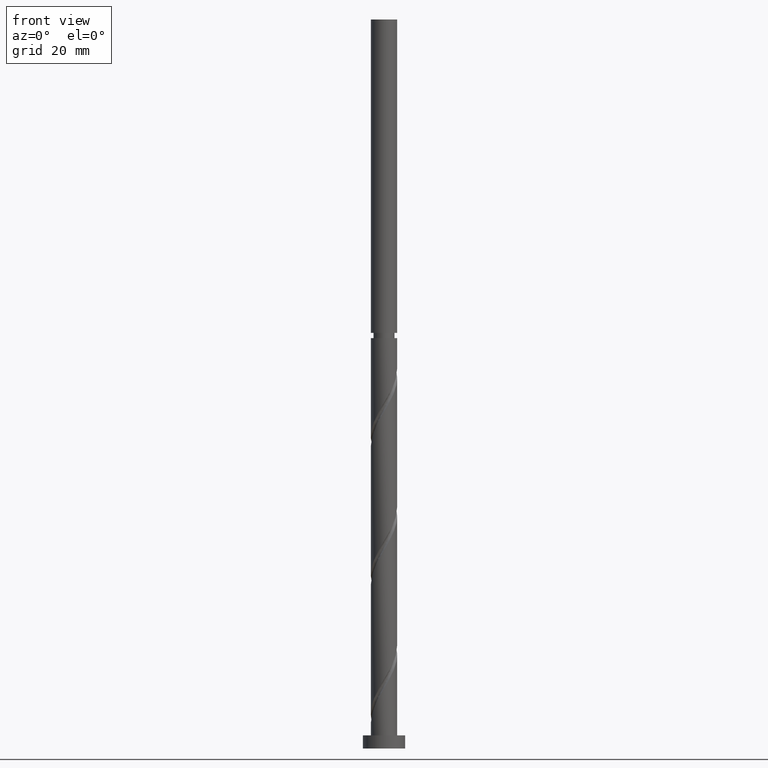
[diagram: clean part render]
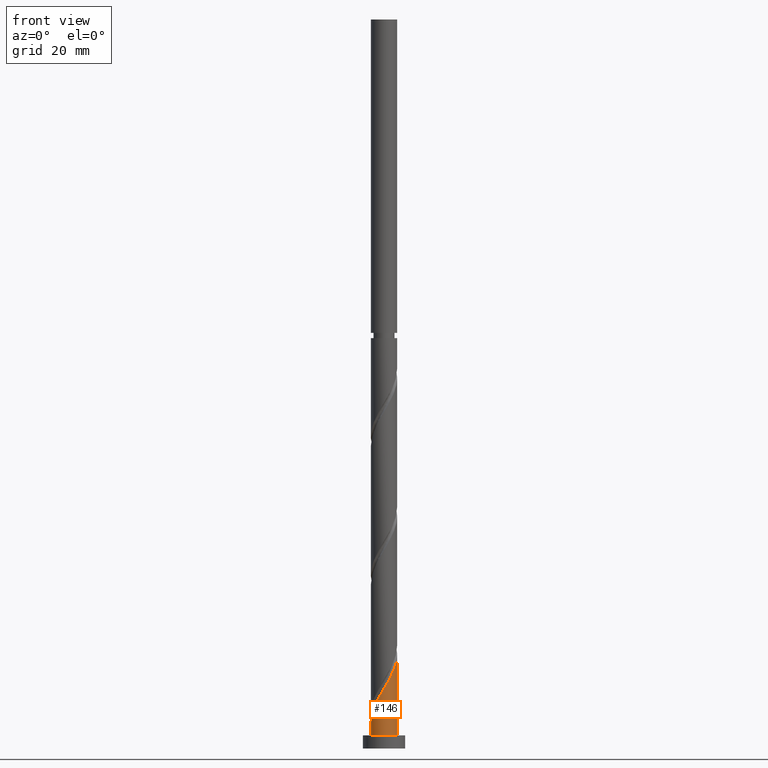
[diagram: same view with one face highlighted and labeled with its STEP entity id]
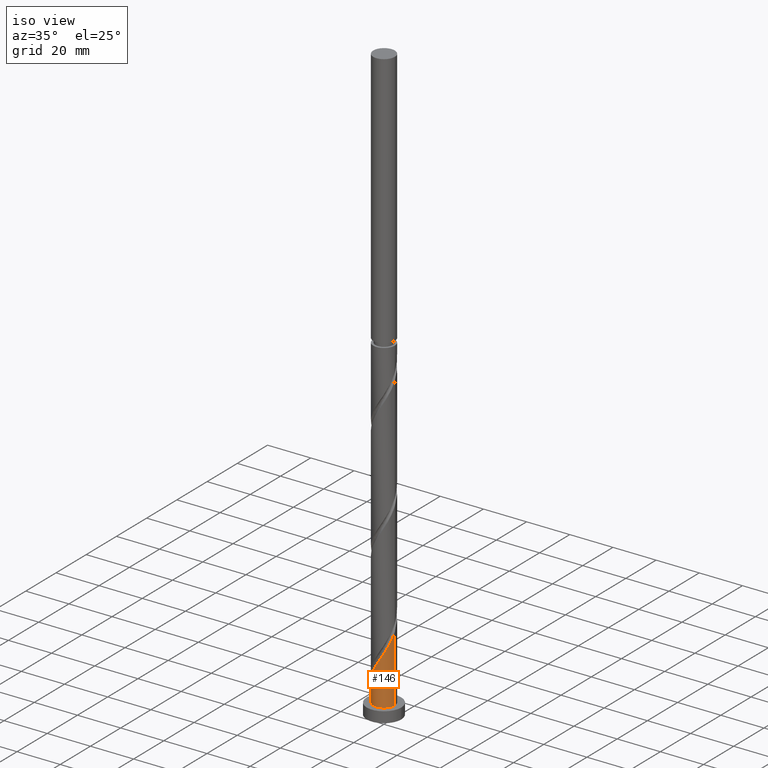
[diagram: same view with one face highlighted and labeled with its STEP entity id]
A machine part, front view. The second image highlights one B-rep face of the part: STEP entity #146.
A second angle (iso view) of the same face is appended — the face is thin or edge-on in the first view.
In plain terms, the highlighted cylindrical surface (edge-blend (fillet) strip) has radius 5 mm, axis along (-0, -0, -1).
Its self-contained STEP definition (entity closure, byte-faithful):
#11 = CARTESIAN_POINT ( 'NONE',  ( -4.323590631524826478, -2.573702359565722020, 14.15202953022190613 ) ) ;
#74 = LINE ( 'NONE', #648, #2411 ) ;
#115 = VERTEX_POINT ( 'NONE', #340 ) ;
#146 = ADVANCED_FACE ( 'NONE', ( #1694 ), #1136, .T. ) ;
#156 = AXIS2_PLACEMENT_3D ( 'NONE', #717, #1098, #905 ) ;
#167 = EDGE_CURVE ( 'NONE', #2025, #482, #1880, .T. ) ;
#182 = EDGE_CURVE ( 'NONE', #115, #2025, #2418, .T. ) ;
#187 = CARTESIAN_POINT ( 'NONE',  ( 3.833012532097932468, -3.210609744079815364, 30.08952953022192034 ) ) ;
#198 = DIRECTION ( 'NONE',  ( -0.000000000000000000, -0.000000000000000000, -1.000000000000000000 ) ) ;
#340 = CARTESIAN_POINT ( 'NONE',  ( -5.000000000000006217, 8.283804304447137130E-16, 9.665012452315867364 ) ) ;
#353 = CARTESIAN_POINT ( 'NONE',  ( -2.277187526117663730, -4.451338784106887658, 18.83952953022191679 ) ) ;
#365 = CARTESIAN_POINT ( 'NONE',  ( 2.060393601091443205, -4.555741235911177966, 26.33952953022192744 ) ) ;
#391 = CARTESIAN_POINT ( 'NONE',  ( 5.000000000000006217, -0.06016448583195582039, 35.81464976409075973 ) ) ;
#482 = VERTEX_POINT ( 'NONE', #1158 ) ;
#536 = CARTESIAN_POINT ( 'NONE',  ( -3.642486534745257742, -3.471263693360517877, 16.02702953022192034 ) ) ;
#549 = CARTESIAN_POINT ( 'NONE',  ( -1.229577616888956504, -4.846456322308676512, 20.71452953022190258 ) ) ;
#561 = CARTESIAN_POINT ( 'NONE',  ( 5.000000000000000000, 6.123233995736766282E-16, 276.6500000000000341 ) ) ;
#572 = CARTESIAN_POINT ( 'NONE',  ( 4.998552303470705560, -0.1203115516804412755, 35.71452953022190968 ) ) ;
#584 = EDGE_LOOP ( 'NONE', ( #1316, #1083, #1487, #1828 ) ) ;
#648 = CARTESIAN_POINT ( 'NONE',  ( -5.000000000000000000, 0.000000000000000000, 276.6500000000000341 ) ) ;
#699 = VERTEX_POINT ( 'NONE', #1632 ) ;
#717 = CARTESIAN_POINT ( 'NONE',  ( 0.000000000000000000, 0.000000000000000000, 276.6500000000000341 ) ) ;
#731 = CARTESIAN_POINT ( 'NONE',  ( -2.778732953414372986, -4.194761370835350611, 17.90202953022190968 ) ) ;
#745 = CARTESIAN_POINT ( 'NONE',  ( 4.846456322308676512, -1.229577616888956726, 33.83952953022191679 ) ) ;
#880 = CARTESIAN_POINT ( 'NONE',  ( 0.000000000000000000, 0.000000000000000000, 5.000000000000000000 ) ) ;
#905 = DIRECTION ( 'NONE',  ( -1.000000000000000000, 0.000000000000000000, 0.000000000000000000 ) ) ;
#920 = CARTESIAN_POINT ( 'NONE',  ( -0.6835131349569575354, -4.984996447238927431, 21.65202953022191323 ) ) ;
#1083 = ORIENTED_EDGE ( 'NONE', *, *, #182, .F. ) ;
#1098 = DIRECTION ( 'NONE',  ( -0.000000000000000000, -0.000000000000000000, -1.000000000000000000 ) ) ;
#1112 = CARTESIAN_POINT ( 'NONE',  ( -1.775642098820955583, -4.707916197378425593, 19.77702953022192034 ) ) ;
#1124 = CARTESIAN_POINT ( 'NONE',  ( 2.573702359565722020, -4.323590631524826478, 27.27702953022192744 ) ) ;
#1136 = CYLINDRICAL_SURFACE ( 'NONE', #156, 5.000000000000000000 ) ;
#1150 = EDGE_CURVE ( 'NONE', #115, #699, #74, .T. ) ;
#1158 = CARTESIAN_POINT ( 'NONE',  ( 5.000000000000000000, 6.123233995736766282E-16, 5.000000000000000000 ) ) ;
#1293 = CARTESIAN_POINT ( 'NONE',  ( -3.210609744079815364, -3.833012532097932912, 16.96452953022192389 ) ) ;
#1316 = ORIENTED_EDGE ( 'NONE', *, *, #167, .F. ) ;
#1360 = EDGE_CURVE ( 'NONE', #699, #482, #1969, .T. ) ;
#1477 = CARTESIAN_POINT ( 'NONE',  ( -4.900000000000005684, -0.9949874371066209644, 11.33952953022190613 ) ) ;
#1487 = ORIENTED_EDGE ( 'NONE', *, *, #1150, .T. ) ;
#1490 = CARTESIAN_POINT ( 'NONE',  ( 0.4428900315960757061, -5.012108159702488130, 23.52702953022193100 ) ) ;
#1502 = CARTESIAN_POINT ( 'NONE',  ( -5.000000000000007105, -0.5025189076296061597, 10.50328353127947167 ) ) ;
#1512 = CARTESIAN_POINT ( 'NONE',  ( 0.9949874371066205203, -4.900000000000005684, 24.46452953022189902 ) ) ;
#1612 = DIRECTION ( 'NONE',  ( 0.000000000000000000, 0.000000000000000000, 1.000000000000000000 ) ) ;
#1632 = CARTESIAN_POINT ( 'NONE',  ( -5.000000000000000000, 0.000000000000000000, 5.000000000000000000 ) ) ;
#1671 = CARTESIAN_POINT ( 'NONE',  ( -0.1203115516804408452, -4.998552303470705560, 22.58952953022191679 ) ) ;
#1683 = CARTESIAN_POINT ( 'NONE',  ( 4.194761370835350611, -2.778732953414372986, 31.02702953022191679 ) ) ;
#1694 = FACE_OUTER_BOUND ( 'NONE', #584, .T. ) ;
#1721 = CARTESIAN_POINT ( 'NONE',  ( 5.000000000000005329, -1.686612407932480338E-15, 35.91501245231585671 ) ) ;
#1826 = CARTESIAN_POINT ( 'NONE',  ( 5.000000000000006217, -1.686612407932480338E-15, 35.91501245231585671 ) ) ;
#1828 = ORIENTED_EDGE ( 'NONE', *, *, #1360, .T. ) ;
#1870 = CARTESIAN_POINT ( 'NONE',  ( 3.022483026463119504, -3.983038583135042554, 28.21452953022190613 ) ) ;
#1880 = LINE ( 'NONE', #561, #2281 ) ;
#1897 = CARTESIAN_POINT ( 'NONE',  ( -4.555741235911177966, -2.060393601091443649, 13.21452953022192212 ) ) ;
#1969 = CIRCLE ( 'NONE', #2003, 5.000000000000000000 ) ;
#2003 = AXIS2_PLACEMENT_3D ( 'NONE', #880, #1612, #2199 ) ;
#2025 = VERTEX_POINT ( 'NONE', #1826 ) ;
#2040 = CARTESIAN_POINT ( 'NONE',  ( -5.000000000000005329, 8.283804304447137130E-16, 9.665012452315867364 ) ) ;
#2055 = CARTESIAN_POINT ( 'NONE',  ( -4.787891840297527679, -1.547084842617165945, 12.27702953022191679 ) ) ;
#2078 = CARTESIAN_POINT ( 'NONE',  ( 4.451338784106887658, -2.277187526117664174, 31.96452953022191323 ) ) ;
#2151 = DIRECTION ( 'NONE',  ( -0.000000000000000000, -0.000000000000000000, -1.000000000000000000 ) ) ;
#2199 = DIRECTION ( 'NONE',  ( 1.000000000000000000, 0.000000000000000000, 0.000000000000000000 ) ) ;
#2225 = CARTESIAN_POINT ( 'NONE',  ( -3.983038583135042554, -3.022483026463119504, 15.08952953022190968 ) ) ;
#2237 = CARTESIAN_POINT ( 'NONE',  ( 1.547084842617165279, -4.787891840297527679, 25.40202953022190968 ) ) ;
#2249 = CARTESIAN_POINT ( 'NONE',  ( 4.984996447238927431, -0.6835131349569582015, 34.77702953022193100 ) ) ;
#2260 = CARTESIAN_POINT ( 'NONE',  ( 3.471263693360517877, -3.642486534745257742, 29.15202953022192034 ) ) ;
#2281 = VECTOR ( 'NONE', #198, 1000.000000000000000 ) ;
#2411 = VECTOR ( 'NONE', #2151, 1000.000000000000000 ) ;
#2418 =( BOUNDED_CURVE ( )  B_SPLINE_CURVE ( 2, ( #2040, #1502, #1477, #2055, #1897, #11, #2225, #536, #1293, #731, #353, #1112, #549, #920, #1671, #1490, #1512, #2237, #365, #1124, #1870, #2260, #187, #1683, #2078, #2432, #745, #2249, #572, #391, #1721 ),
 .UNSPECIFIED., .F., .T. ) 
 B_SPLINE_CURVE_WITH_KNOTS ( ( 3, 2, 2, 2, 2, 2, 2, 2, 2, 2, 2, 2, 2, 2, 2, 3 ),
 ( 0.05453034012992208357, 0.06250000000000000000, 0.07142857142857139685, 0.08035714285714290472, 0.08928571428571430157, 0.09821428571428569843, 0.1071428571428570953, 0.1160714285714286031, 0.1250000000000000000, 0.1339285714285713969, 0.1428571428571429047, 0.1517857142857143016, 0.1607142857142856984, 0.1696428571428570953, 0.1785714285714286031, 0.1795303401299220558 ),
 .UNSPECIFIED. ) 
 CURVE ( )  GEOMETRIC_REPRESENTATION_ITEM ( )  RATIONAL_B_SPLINE_CURVE ( ( 0.9079949616361903120, 0.9039886423360534717, 0.9090909090909201629, 0.9033747362665951464, 0.9090909090909201629, 0.9033747362665951464, 0.9090909090909201629, 0.9033747362665951464, 0.9090909090909201629, 0.9033747362665951464, 0.9090909090909201629, 0.9033747362665951464, 0.9090909090909201629, 0.9033747362665951464, 0.9090909090909201629, 0.9033747362665951464, 0.9090909090909201629, 0.9033747362665951464, 0.9090909090909201629, 0.9033747362665951464, 0.9090909090909201629, 0.9033747362665951464, 0.9090909090909201629, 0.9033747362665951464, 0.9090909090909201629, 0.9033747362665951464, 0.9090909090909201629, 0.9033747362665951464, 0.9090909090909201629, 0.9084770030214619485, 0.9079949616361903120 ) ) 
 REPRESENTATION_ITEM ( '' )  );
#2432 = CARTESIAN_POINT ( 'NONE',  ( 4.707916197378425593, -1.775642098820955583, 32.90202953022191679 ) ) ;